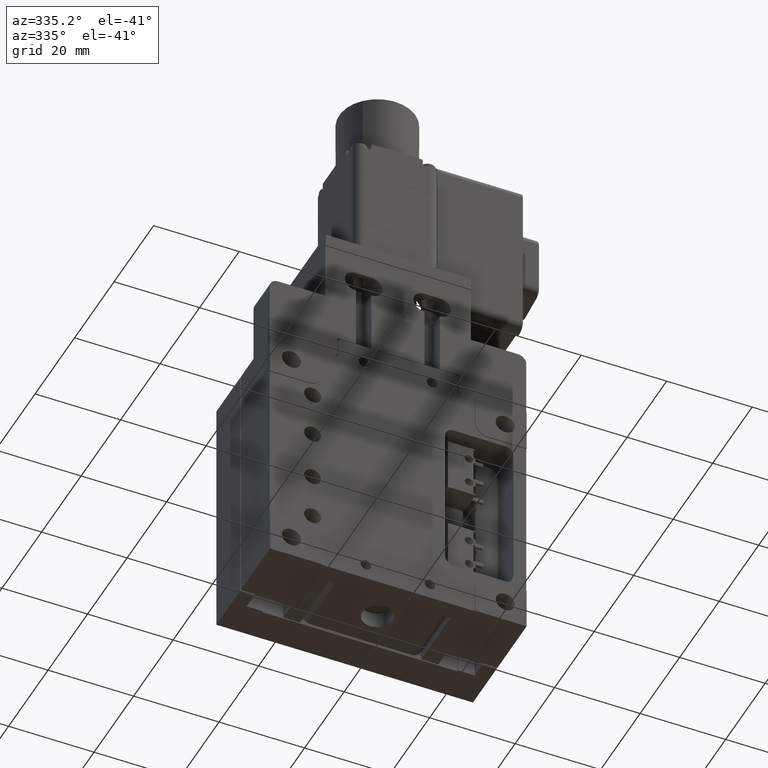
[diagram: clean part render]
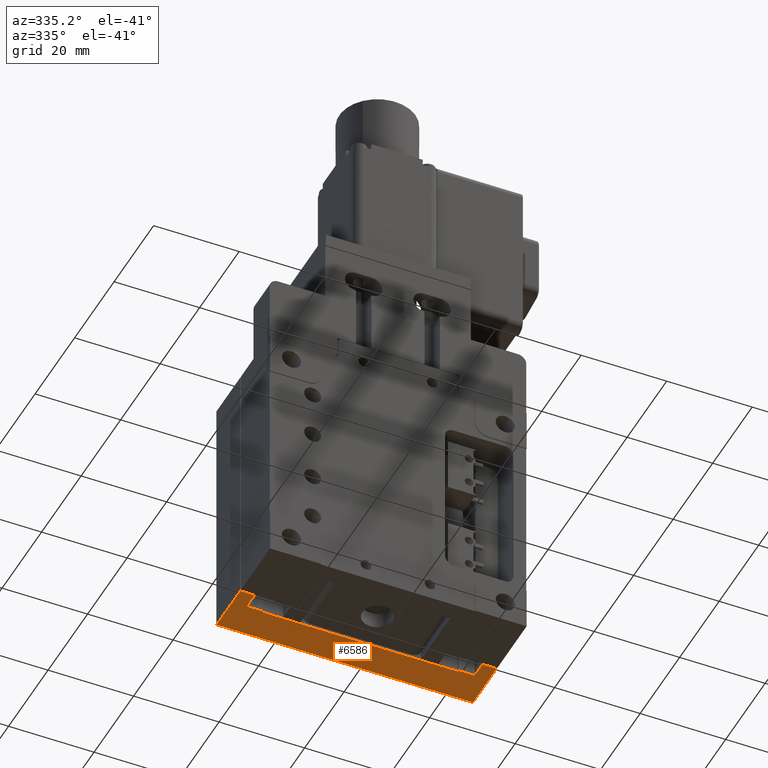
[diagram: same view with one face highlighted and labeled with its STEP entity id]
A machine part, auxiliary view. The second image highlights one B-rep face of the part: STEP entity #6586.
In plain terms, the highlighted planar face has unit normal (0, 0, 1).
Its self-contained STEP definition (entity closure, byte-faithful):
#97 = LINE ( 'NONE', #11499, #1566 ) ;
#161 = VECTOR ( 'NONE', #7220, 1000.000000000000000 ) ;
#207 = VECTOR ( 'NONE', #4357, 1000.000000000000000 ) ;
#261 = LINE ( 'NONE', #5964, #7756 ) ;
#378 = AXIS2_PLACEMENT_3D ( 'NONE', #8464, #11616, #8830 ) ;
#1420 = ORIENTED_EDGE ( 'NONE', *, *, #13886, .F. ) ;
#1566 = VECTOR ( 'NONE', #17181, 1000.000000000000000 ) ;
#1570 = LINE ( 'NONE', #8942, #9303 ) ;
#1598 = CARTESIAN_POINT ( 'NONE',  ( 27.40828040119206577, 14.10181245401396311, 32.49999999999997158 ) ) ;
#1676 = EDGE_CURVE ( 'NONE', #16479, #6525, #8392, .T. ) ;
#1781 = VECTOR ( 'NONE', #13088, 1000.000000000000000 ) ;
#1987 = CARTESIAN_POINT ( 'NONE',  ( 27.40828040119205511, 2.001812454013949694, 32.49999999999997158 ) ) ;
#2118 = ORIENTED_EDGE ( 'NONE', *, *, #13077, .F. ) ;
#2782 = VERTEX_POINT ( 'NONE', #12773 ) ;
#2932 = PLANE ( 'NONE',  #378 ) ;
#3527 = ORIENTED_EDGE ( 'NONE', *, *, #15952, .F. ) ;
#4357 = DIRECTION ( 'NONE',  ( -0.000000000000000000, -1.000000000000000000, -0.000000000000000000 ) ) ;
#4685 = CARTESIAN_POINT ( 'NONE',  ( -25.44171959880793921, 6.001812454013955467, 32.49999999999997158 ) ) ;
#4974 = EDGE_CURVE ( 'NONE', #10037, #11827, #5312, .T. ) ;
#5039 = DIRECTION ( 'NONE',  ( 1.000000000000000000, 1.138768146155453297E-16, -0.000000000000000000 ) ) ;
#5312 = LINE ( 'NONE', #13719, #12096 ) ;
#5437 = VECTOR ( 'NONE', #5972, 1000.000000000000000 ) ;
#5809 = ORIENTED_EDGE ( 'NONE', *, *, #17199, .F. ) ;
#5964 = CARTESIAN_POINT ( 'NONE',  ( 20.25828040119206719, 6.301812454013955289, 32.49999999999997158 ) ) ;
#5972 = DIRECTION ( 'NONE',  ( -1.000000000000000000, -1.156482317317871478E-16, 0.000000000000000000 ) ) ;
#5982 = ORIENTED_EDGE ( 'NONE', *, *, #13443, .F. ) ;
#6065 = CARTESIAN_POINT ( 'NONE',  ( 24.05828040119206435, 2.001812454013718323, 32.49999999999997158 ) ) ;
#6081 = CARTESIAN_POINT ( 'NONE',  ( 24.05828040119206435, 2.001812454013718323, 32.49999999999997158 ) ) ;
#6142 = EDGE_CURVE ( 'NONE', #11507, #6638, #13628, .T. ) ;
#6525 = VERTEX_POINT ( 'NONE', #11523 ) ;
#6586 = ADVANCED_FACE ( 'NONE', ( #13111 ), #2932, .F. ) ;
#6638 = VERTEX_POINT ( 'NONE', #12834 ) ;
#6839 = VECTOR ( 'NONE', #6903, 1000.000000000000000 ) ;
#6903 = DIRECTION ( 'NONE',  ( 8.601934591620527665E-16, -1.000000000000000000, 0.000000000000000000 ) ) ;
#7220 = DIRECTION ( 'NONE',  ( 0.000000000000000000, 1.000000000000000000, 0.000000000000000000 ) ) ;
#7256 = LINE ( 'NONE', #13225, #11312 ) ;
#7412 = EDGE_CURVE ( 'NONE', #14467, #11507, #97, .T. ) ;
#7756 = VECTOR ( 'NONE', #5039, 1000.000000000000000 ) ;
#8267 = ORIENTED_EDGE ( 'NONE', *, *, #6142, .F. ) ;
#8392 = LINE ( 'NONE', #12767, #207 ) ;
#8464 = CARTESIAN_POINT ( 'NONE',  ( -32.59171959880793423, 6.001812454013939480, 32.49999999999997158 ) ) ;
#8705 = ORIENTED_EDGE ( 'NONE', *, *, #12771, .F. ) ;
#8830 = DIRECTION ( 'NONE',  ( 1.000000000000000000, 0.000000000000000000, -0.000000000000000000 ) ) ;
#8942 = CARTESIAN_POINT ( 'NONE',  ( -29.24171959880793636, 6.001812454013955467, 32.49999999999997158 ) ) ;
#8992 = VERTEX_POINT ( 'NONE', #14866 ) ;
#9004 = VECTOR ( 'NONE', #11115, 1000.000000000000000 ) ;
#9242 = ORIENTED_EDGE ( 'NONE', *, *, #1676, .F. ) ;
#9303 = VECTOR ( 'NONE', #17149, 1000.000000000000000 ) ;
#10037 = VERTEX_POINT ( 'NONE', #17400 ) ;
#10167 = CARTESIAN_POINT ( 'NONE',  ( -25.44171959880793921, 6.301812454013949960, 32.49999999999997158 ) ) ;
#10399 = EDGE_CURVE ( 'NONE', #18056, #14818, #14402, .T. ) ;
#10427 = DIRECTION ( 'NONE',  ( 0.000000000000000000, 1.000000000000000000, 0.000000000000000000 ) ) ;
#10720 = EDGE_LOOP ( 'NONE', ( #1420, #9242, #5982, #12618, #3527, #8705, #16588, #15408, #5809, #8267, #11920, #2118 ) ) ;
#11012 = DIRECTION ( 'NONE',  ( 1.000000000000000000, -7.093092611529905574E-14, -0.000000000000000000 ) ) ;
#11115 = DIRECTION ( 'NONE',  ( 8.601934591620520762E-16, 1.000000000000000000, 0.000000000000000000 ) ) ;
#11200 = CARTESIAN_POINT ( 'NONE',  ( 27.40828040119205511, 2.001812454013949694, 32.49999999999997158 ) ) ;
#11312 = VECTOR ( 'NONE', #10427, 1000.000000000000000 ) ;
#11398 = CARTESIAN_POINT ( 'NONE',  ( -29.24171959880793636, 6.001812454013955467, 32.49999999999997158 ) ) ;
#11499 = CARTESIAN_POINT ( 'NONE',  ( 24.05828040119206435, 2.001812454013718323, 32.49999999999997158 ) ) ;
#11507 = VERTEX_POINT ( 'NONE', #1987 ) ;
#11523 = CARTESIAN_POINT ( 'NONE',  ( 20.25828040119206719, 6.001812454013960796, 32.49999999999997158 ) ) ;
#11616 = DIRECTION ( 'NONE',  ( 0.000000000000000000, 0.000000000000000000, 1.000000000000000000 ) ) ;
#11827 = VERTEX_POINT ( 'NONE', #15611 ) ;
#11920 = ORIENTED_EDGE ( 'NONE', *, *, #7412, .F. ) ;
#12096 = VECTOR ( 'NONE', #11012, 1000.000000000000000 ) ;
#12301 = DIRECTION ( 'NONE',  ( 1.000000000000000000, 4.565061778886337002E-16, -0.000000000000000000 ) ) ;
#12595 = LINE ( 'NONE', #15384, #6839 ) ;
#12618 = ORIENTED_EDGE ( 'NONE', *, *, #10399, .F. ) ;
#12767 = CARTESIAN_POINT ( 'NONE',  ( 20.25828040119206719, 6.001812454013960796, 32.49999999999997158 ) ) ;
#12771 = EDGE_CURVE ( 'NONE', #11827, #13384, #7256, .T. ) ;
#12773 = CARTESIAN_POINT ( 'NONE',  ( -32.59171959880794134, 14.10181245401395600, 32.49999999999997158 ) ) ;
#12834 = CARTESIAN_POINT ( 'NONE',  ( 27.40828040119206577, 14.10181245401396311, 32.49999999999997158 ) ) ;
#12894 = LINE ( 'NONE', #1598, #5437 ) ;
#13077 = EDGE_CURVE ( 'NONE', #8992, #14467, #17379, .T. ) ;
#13088 = DIRECTION ( 'NONE',  ( -0.000000000000000000, -1.000000000000000000, -0.000000000000000000 ) ) ;
#13111 = FACE_OUTER_BOUND ( 'NONE', #10720, .T. ) ;
#13225 = CARTESIAN_POINT ( 'NONE',  ( -29.24171959880793636, 2.001812454013712106, 32.49999999999997158 ) ) ;
#13384 = VERTEX_POINT ( 'NONE', #11398 ) ;
#13443 = EDGE_CURVE ( 'NONE', #14818, #16479, #261, .T. ) ;
#13626 = EDGE_CURVE ( 'NONE', #2782, #10037, #12595, .T. ) ;
#13628 = LINE ( 'NONE', #11200, #9004 ) ;
#13719 = CARTESIAN_POINT ( 'NONE',  ( -29.24171959880793636, 2.001812454013712106, 32.49999999999997158 ) ) ;
#13788 = CARTESIAN_POINT ( 'NONE',  ( 24.05828040119206435, 6.001812454013962572, 32.49999999999997158 ) ) ;
#13886 = EDGE_CURVE ( 'NONE', #6525, #8992, #14998, .T. ) ;
#14402 = LINE ( 'NONE', #4685, #161 ) ;
#14467 = VERTEX_POINT ( 'NONE', #6065 ) ;
#14818 = VERTEX_POINT ( 'NONE', #10167 ) ;
#14866 = CARTESIAN_POINT ( 'NONE',  ( 24.05828040119206435, 6.001812454013962572, 32.49999999999997158 ) ) ;
#14998 = LINE ( 'NONE', #13788, #15463 ) ;
#15384 = CARTESIAN_POINT ( 'NONE',  ( -32.59171959880794134, 14.10181245401395600, 32.49999999999997158 ) ) ;
#15408 = ORIENTED_EDGE ( 'NONE', *, *, #13626, .F. ) ;
#15463 = VECTOR ( 'NONE', #12301, 1000.000000000000000 ) ;
#15611 = CARTESIAN_POINT ( 'NONE',  ( -29.24171959880793636, 2.001812454013712106, 32.49999999999997158 ) ) ;
#15952 = EDGE_CURVE ( 'NONE', #13384, #18056, #1570, .T. ) ;
#16280 = CARTESIAN_POINT ( 'NONE',  ( 20.25828040119206719, 6.301812454013955289, 32.49999999999997158 ) ) ;
#16479 = VERTEX_POINT ( 'NONE', #16280 ) ;
#16500 = CARTESIAN_POINT ( 'NONE',  ( -25.44171959880793921, 6.001812454013955467, 32.49999999999997158 ) ) ;
#16588 = ORIENTED_EDGE ( 'NONE', *, *, #4974, .F. ) ;
#17149 = DIRECTION ( 'NONE',  ( 1.000000000000000000, 0.000000000000000000, 0.000000000000000000 ) ) ;
#17181 = DIRECTION ( 'NONE',  ( 1.000000000000000000, 6.898245822292431593E-14, 0.000000000000000000 ) ) ;
#17199 = EDGE_CURVE ( 'NONE', #6638, #2782, #12894, .T. ) ;
#17379 = LINE ( 'NONE', #6081, #1781 ) ;
#17400 = CARTESIAN_POINT ( 'NONE',  ( -32.59171959880792713, 2.001812454013949694, 32.49999999999997158 ) ) ;
#18056 = VERTEX_POINT ( 'NONE', #16500 ) ;